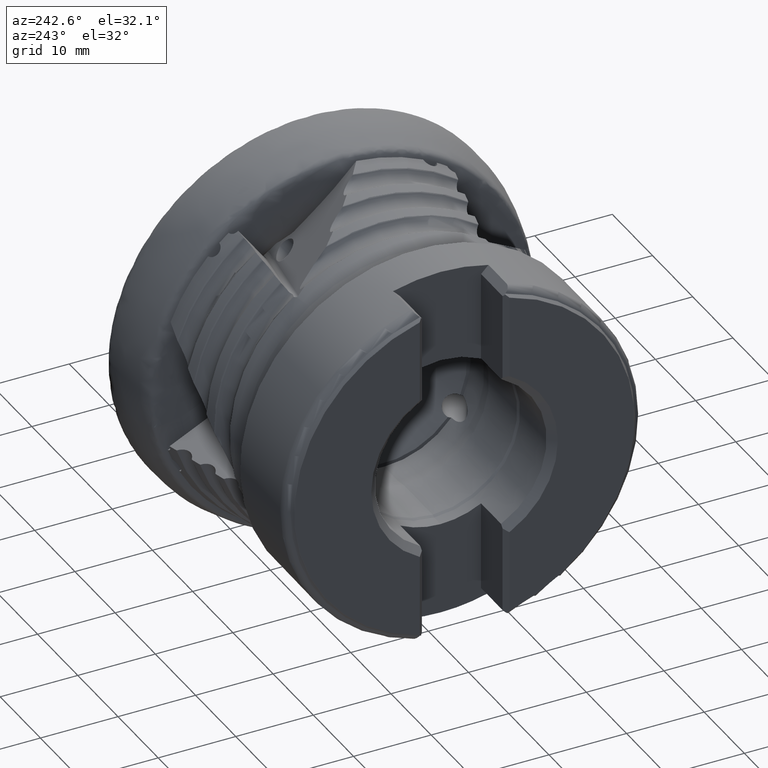
[diagram: clean part render]
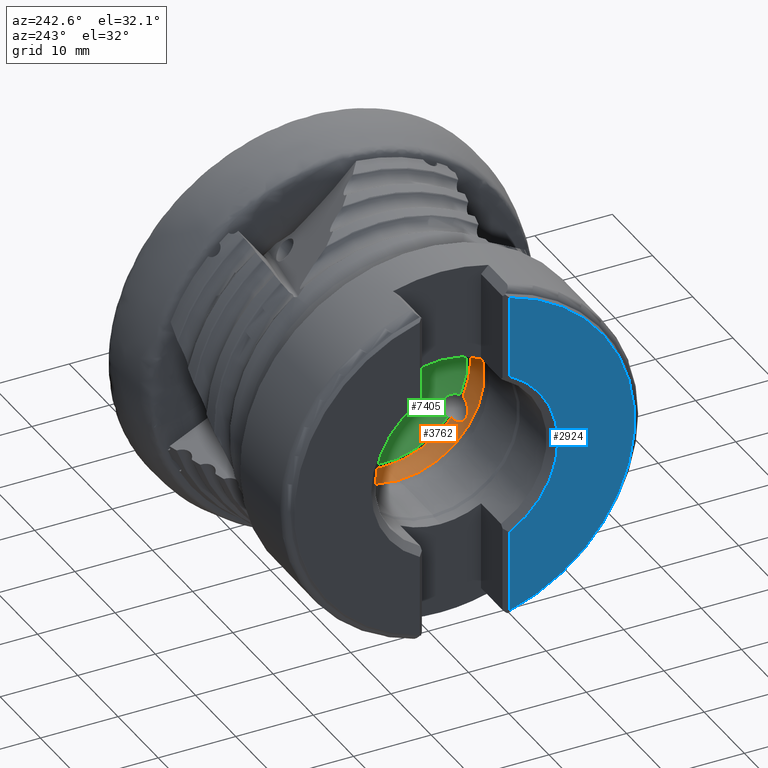
[diagram: same view with three faces highlighted in distinct colors, each labeled with its STEP entity id]
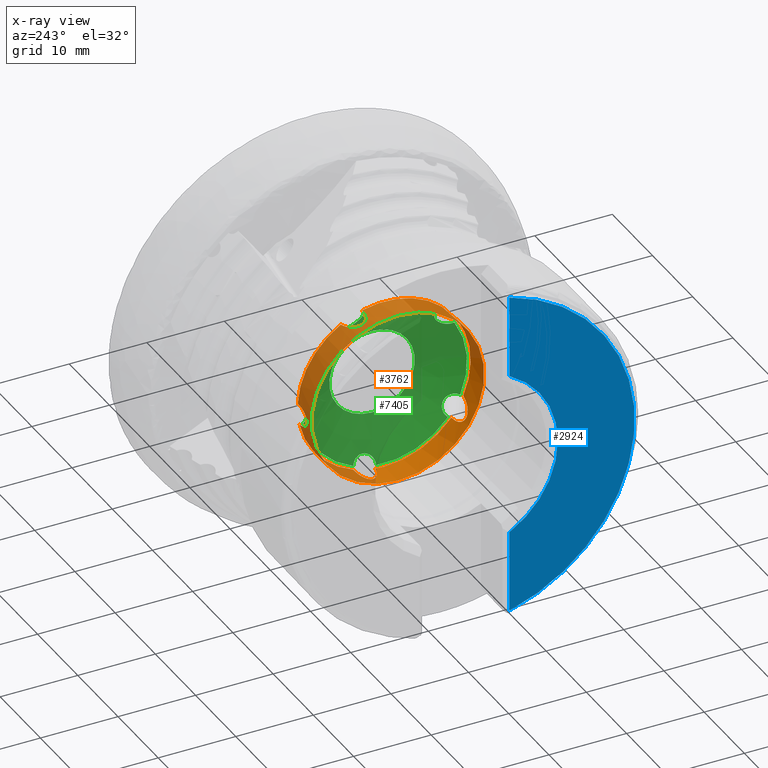
[diagram: x-ray of the same camera — body ghosted, the three highlighted faces saturated]
A machine part, auxiliary view with three faces highlighted in distinct colors.
The next image is the same camera in x-ray (body ghosted, the three faces saturated) — at least one of them is partly hidden behind the body in this view.
Their STEP definitions:

[orange] entity #3762 — the highlighted cylindrical surface (bore or boss wall) has radius 11.15 mm, axis along (1, -0, -0).
#149 = CARTESIAN_POINT ( 'NONE',  ( -20.65374716173695900, 3.200912327050315000, 10.68087169038327600 ) ) ;
#176 = CARTESIAN_POINT ( 'NONE',  ( -20.15352680948125700, 5.259727511920351300, 9.832297671609188300 ) ) ;
#272 = EDGE_LOOP ( 'NONE', ( #6624, #9561, #5532, #2897, #889, #4864, #3091, #8757, #9420, #2860 ) ) ;
#293 = CARTESIAN_POINT ( 'NONE',  ( -20.65601831202417300, -9.168309473252406900, 6.345790389407414800 ) ) ;
#303 = CARTESIAN_POINT ( 'NONE',  ( -19.00000000000000000, 11.13378067538587900, 0.6011887161315945200 ) ) ;
#321 = CARTESIAN_POINT ( 'NONE',  ( -22.39904181246358000, 0.0000000000000000000, -11.14999999999999700 ) ) ;
#323 = CARTESIAN_POINT ( 'NONE',  ( -20.15531217829027000, -7.726393512939347700, 8.040003214790333500 ) ) ;
#660 = CARTESIAN_POINT ( 'NONE',  ( -19.96954961455513500, 11.13842004640219200, 0.5094275870103421900 ) ) ;
#685 = CARTESIAN_POINT ( 'NONE',  ( -20.65731140013641500, -8.868711207813962700, -6.758186262422156300 ) ) ;
#687 = CARTESIAN_POINT ( 'NONE',  ( -21.01087066442919100, 11.07540578241055800, -1.290908182655602800 ) ) ;
#711 = CARTESIAN_POINT ( 'NONE',  ( -20.14930099210685600, -10.03539597498195900, -4.861016928152857900 ) ) ;
#730 = CARTESIAN_POINT ( 'NONE',  ( -20.54770342484380000, 3.739202799541584600, -10.50443055125018300 ) ) ;
#758 = VERTEX_POINT ( 'NONE', #928 ) ;
#832 = VERTEX_POINT ( 'NONE', #6322 ) ;
#889 = ORIENTED_EDGE ( 'NONE', *, *, #7701, .F. ) ;
#928 = CARTESIAN_POINT ( 'NONE',  ( -18.99999999999996100, 10.90062604148086600, -2.344963092201920200 ) ) ;
#933 = CARTESIAN_POINT ( 'NONE',  ( -20.95194922637920600, 3.401993368158433600, 10.61873777387004800 ) ) ;
#966 = CARTESIAN_POINT ( 'NONE',  ( -19.47605082154158800, 5.496993238785782100, 9.701170473682292800 ) ) ;
#1086 = CARTESIAN_POINT ( 'NONE',  ( -20.95601962319156500, -9.045471095745050100, 6.520010687297969700 ) ) ;
#1130 = CARTESIAN_POINT ( 'NONE',  ( -19.47648082896947500, -7.527769890133475500, 8.225714009222516100 ) ) ;
#1188 = ORIENTED_EDGE ( 'NONE', *, *, #2124, .F. ) ;
#1253 = CARTESIAN_POINT ( 'NONE',  ( -19.00000000000000000, 4.012291886338386100, -10.40307713221540600 ) ) ;
#1261 = CIRCLE ( 'NONE', #4631, 11.14999999999999900 ) ;
#1315 = CARTESIAN_POINT ( 'NONE',  ( -19.00000000000000000, 2.868762994338141900, 10.77463219243775700 ) ) ;
#1431 = AXIS2_PLACEMENT_3D ( 'NONE', #7248, #2578, #8036 ) ;
#1455 = CARTESIAN_POINT ( 'NONE',  ( -20.54682292802148800, 11.14577233216032100, 0.3105977922661296600 ) ) ;
#1481 = CARTESIAN_POINT ( 'NONE',  ( -20.95930859977201500, -8.997833516409365000, -6.585611339750207600 ) ) ;
#1483 = CARTESIAN_POINT ( 'NONE',  ( -20.57178317787948200, 11.01830480340752600, -1.713395142816428200 ) ) ;
#1523 = CARTESIAN_POINT ( 'NONE',  ( -19.47390299663417300, -10.14960963253738100, -4.616813744078142700 ) ) ;
#1540 = CARTESIAN_POINT ( 'NONE',  ( -20.86253938389102200, 3.559102130354114800, -10.56692046043277600 ) ) ;
#1568 = DIRECTION ( 'NONE',  ( 1.000000000000000000, -0.0000000000000000000, -0.0000000000000000000 ) ) ;
#1713 = VERTEX_POINT ( 'NONE', #7645 ) ;
#1723 = FACE_OUTER_BOUND ( 'NONE', #272, .T. ) ;
#1733 = CARTESIAN_POINT ( 'NONE',  ( -21.17926471025420200, 3.680037132726535500, 10.52585301580393000 ) ) ;
#1772 = CARTESIAN_POINT ( 'NONE',  ( -18.99999999999978700, 5.598671125456165900, 9.642477981773341300 ) ) ;
#1804 = DIRECTION ( 'NONE',  ( 0.0000000000000000000, 0.0000000000000000000, -1.000000000000000000 ) ) ;
#1893 = CARTESIAN_POINT ( 'NONE',  ( -21.18088844487279200, -8.871217800194772400, 6.755548669824166000 ) ) ;
#1926 = CARTESIAN_POINT ( 'NONE',  ( -18.99999999999967700, -7.440456994118004100, 8.304342220710825700 ) ) ;
#2124 = EDGE_CURVE ( 'NONE', #2350, #2350, #7243, .T. ) ;
#2248 = CARTESIAN_POINT ( 'NONE',  ( -20.86222607264242200, 11.14956018152946600, 0.1198573633100861000 ) ) ;
#2275 = CARTESIAN_POINT ( 'NONE',  ( -21.18337929368388500, -9.168906425526921900, -6.345663061610350700 ) ) ;
#2276 = CARTESIAN_POINT ( 'NONE',  ( -19.93083824550326400, 10.95743799966453100, -2.064982377817486300 ) ) ;
#2311 = CARTESIAN_POINT ( 'NONE',  ( -19.00000000000030900, -10.19712643965033500, -4.510112235164886100 ) ) ;
#2321 = CARTESIAN_POINT ( 'NONE',  ( -21.11801481087871600, 3.306778040405337300, -10.64878028798158900 ) ) ;
#2350 = VERTEX_POINT ( 'NONE', #321 ) ;
#2433 = DIRECTION ( 'NONE',  ( 1.000000000000000000, -0.0000000000000000000, -0.0000000000000000000 ) ) ;
#2528 = CARTESIAN_POINT ( 'NONE',  ( -21.26875383626715900, 4.017536285486519500, 10.40178254187552700 ) ) ;
#2538 = CARTESIAN_POINT ( 'NONE',  ( -19.00000000000000000, 11.13378067538587900, 0.6011887161315945200 ) ) ;
#2578 = DIRECTION ( 'NONE',  ( 1.000000000000000000, -0.0000000000000000000, -0.0000000000000000000 ) ) ;
#2599 = CARTESIAN_POINT ( 'NONE',  ( 0.0000000000000000000, 0.0000000000000000000, 0.0000000000000000000 ) ) ;
#2634 = EDGE_CURVE ( 'NONE', #4858, #2787, #5185, .T. ) ;
#2682 = CARTESIAN_POINT ( 'NONE',  ( -21.26868722918730000, -8.650242673740722300, 7.036392409192499600 ) ) ;
#2787 = VERTEX_POINT ( 'NONE', #8256 ) ;
#2810 = CARTESIAN_POINT ( 'NONE',  ( -19.00000000000000000, 0.0000000000000000000, 0.0000000000000000000 ) ) ;
#2828 = CARTESIAN_POINT ( 'NONE',  ( -19.00000000000000000, 2.868762994338141900, 10.77463219243775700 ) ) ;
#2860 = ORIENTED_EDGE ( 'NONE', *, *, #8400, .T. ) ;
#2897 = ORIENTED_EDGE ( 'NONE', *, *, #5451, .T. ) ;
#3040 = CARTESIAN_POINT ( 'NONE',  ( -21.11675398965924800, 11.14944984796520300, -0.1442449607091185500 ) ) ;
#3066 = CARTESIAN_POINT ( 'NONE',  ( -21.26872501950567000, -9.369017977816266600, -6.046398440450499100 ) ) ;
#3067 = CARTESIAN_POINT ( 'NONE',  ( -19.23842261280913800, 10.91124991664581100, -2.295577713528120800 ) ) ;
#3091 = ORIENTED_EDGE ( 'NONE', *, *, #3730, .F. ) ;
#3118 = CARTESIAN_POINT ( 'NONE',  ( -21.25802507840084800, 2.979242748000749500, -10.74524524810297700 ) ) ;
#3305 = CARTESIAN_POINT ( 'NONE',  ( -21.19771122126793400, 4.355909445980979700, 10.26452494811798000 ) ) ;
#3354 = CARTESIAN_POINT ( 'NONE',  ( -19.94761827103593500, 1.400324054842491100, -11.06460398856844000 ) ) ;
#3468 = CARTESIAN_POINT ( 'NONE',  ( -21.19850334521688500, -8.417276461957039000, 7.313277886105805000 ) ) ;
#3495 = EDGE_CURVE ( 'NONE', #832, #2787, #5063, .T. ) ;
#3566 = B_SPLINE_CURVE_WITH_KNOTS ( 'NONE', 3,
 ( #7304, #8781, #8903, #4220, #9713, #5006, #293, #5783, #1086, #6576, #1893, #7341, #2682, #8141, #3468, #8937, #4256, #9754, #5047, #323, #5818, #1130, #6611, #1926 ),
 .UNSPECIFIED., .F., .F.,
 ( 4, 2, 2, 2, 2, 2, 2, 2, 2, 2, 2, 4 ),
 ( 0.01052057343565222600, 0.01125133881053291600, 0.01198210418541360700, 0.01234748687285395000, 0.01271286956029429500, 0.01307825224773464000, 0.01344363493517498600, 0.01380901762261532900, 0.01417440031005567200, 0.01490516568493635900, 0.01563593105981704600, 0.01636669643469772900 ),
 .UNSPECIFIED. ) ;
#3587 = CYLINDRICAL_SURFACE ( 'NONE', #4479, 11.14999999999999700 ) ;
#3589 = DIRECTION ( 'NONE',  ( 0.0000000000000000000, 0.0000000000000000000, -1.000000000000000000 ) ) ;
#3730 = EDGE_CURVE ( 'NONE', #7287, #9948, #6929, .T. ) ;
#3762 = ADVANCED_FACE ( 'NONE', ( #8699, #1723 ), #3587, .F. ) ;
#3800 = VERTEX_POINT ( 'NONE', #8858 ) ;
#3807 = CARTESIAN_POINT ( 'NONE',  ( -21.25795405248662100, 11.13999741090844600, -0.4864834430915406800 ) ) ;
#3843 = CARTESIAN_POINT ( 'NONE',  ( -21.19486770781679000, -9.560935905655378900, -5.737839137121478700 ) ) ;
#3886 = CARTESIAN_POINT ( 'NONE',  ( -21.23750898957846500, 2.622016949096260600, -10.83800533694860500 ) ) ;
#4058 = CARTESIAN_POINT ( 'NONE',  ( -19.96777354157495700, 2.957035874281786800, 10.75080716665297600 ) ) ;
#4101 = CARTESIAN_POINT ( 'NONE',  ( -21.01312151213245000, 4.647554477421101300, 10.13564659033617400 ) ) ;
#4134 = CARTESIAN_POINT ( 'NONE',  ( -19.00000000000000000, 1.138286266834950900, -11.09174487511928400 ) ) ;
#4220 = CARTESIAN_POINT ( 'NONE',  ( -19.96905122147796200, -9.310713648108865900, 6.134699383807011400 ) ) ;
#4256 = CARTESIAN_POINT ( 'NONE',  ( -21.01418316087916700, -8.204426575274185400, 7.551048655514637900 ) ) ;
#4375 = DIRECTION ( 'NONE',  ( 1.000000000000000000, -0.0000000000000000000, -0.0000000000000000000 ) ) ;
#4479 = AXIS2_PLACEMENT_3D ( 'NONE', #2599, #9627, #1804 ) ;
#4512 = CARTESIAN_POINT ( 'NONE',  ( -19.24430115341607100, -8.654341558137675200, -7.030282527178997000 ) ) ;
#4581 = CARTESIAN_POINT ( 'NONE',  ( -19.24208435060813100, 11.13380555674169900, 0.6007279231206728000 ) ) ;
#4605 = CARTESIAN_POINT ( 'NONE',  ( -19.00000000000000000, 0.0000000000000000000, 0.0000000000000000000 ) ) ;
#4607 = CARTESIAN_POINT ( 'NONE',  ( -19.97360312289204400, -8.712246955681235900, -6.958498267894722000 ) ) ;
#4608 = CARTESIAN_POINT ( 'NONE',  ( -21.23723330486220800, 11.11768826013685700, -0.8571134412584882100 ) ) ;
#4631 = AXIS2_PLACEMENT_3D ( 'NONE', #2810, #8273, #3589 ) ;
#4634 = CARTESIAN_POINT ( 'NONE',  ( -21.00789998855212600, -9.720850355307135300, -5.462241088460222800 ) ) ;
#4645 = CARTESIAN_POINT ( 'NONE',  ( -19.48788428368115400, 3.996808221321415100, -10.40910314109401300 ) ) ;
#4670 = VERTEX_POINT ( 'NONE', #8885 ) ;
#4679 = CARTESIAN_POINT ( 'NONE',  ( -21.08373670443261000, 2.294332859821482300, -10.91193477719643700 ) ) ;
#4851 = CARTESIAN_POINT ( 'NONE',  ( -20.54557345847868200, 3.148299888144742800, 10.69639633170365300 ) ) ;
#4858 = VERTEX_POINT ( 'NONE', #1253 ) ;
#4864 = ORIENTED_EDGE ( 'NONE', *, *, #9937, .T. ) ;
#4882 = CARTESIAN_POINT ( 'NONE',  ( -20.57373422940532500, 5.033134525636897100, 9.950194362404440400 ) ) ;
#5006 = CARTESIAN_POINT ( 'NONE',  ( -20.54762361979544100, -9.199442329273791700, 6.300393054345025100 ) ) ;
#5047 = CARTESIAN_POINT ( 'NONE',  ( -20.57496153855524000, -7.908511824370141800, 7.860931823545334000 ) ) ;
#5063 = CIRCLE ( 'NONE', #6812, 11.14999999999999900 ) ;
#5185 = B_SPLINE_CURVE_WITH_KNOTS ( 'NONE', 3,
 ( #6114, #6952, #4645, #10142, #5441, #730, #6215, #1540, #6997, #2321, #7765, #3118, #8558, #3886, #9378, #4679, #10171, #5834, #8021, #3354, #8811, #4134 ),
 .UNSPECIFIED., .F., .F.,
 ( 4, 2, 2, 2, 2, 2, 2, 2, 2, 2, 4 ),
 ( 2.485986451211340100E-016, 0.0007285432793764157800, 0.001457086558752582800, 0.001821358198440661000, 0.002185629838128739700, 0.002549901477816817600, 0.002914173117504896400, 0.003278444757192974700, 0.003642716396881052600, 0.004371259676257211400, 0.005828346235009526500 ),
 .UNSPECIFIED. ) ;
#5345 = CARTESIAN_POINT ( 'NONE',  ( -19.00000000000000000, -8.654047916844616500, -7.030643971426608900 ) ) ;
#5367 = CARTESIAN_POINT ( 'NONE',  ( -19.48799863207969100, 11.13472563587720100, 0.5846388716467677500 ) ) ;
#5387 = EDGE_LOOP ( 'NONE', ( #1188 ) ) ;
#5389 = DIRECTION ( 'NONE',  ( 0.0000000000000000000, 0.0000000000000000000, -1.000000000000000000 ) ) ;
#5391 = CARTESIAN_POINT ( 'NONE',  ( -20.54786587126403700, -8.834919617648735000, -6.802121451522893400 ) ) ;
#5392 = CARTESIAN_POINT ( 'NONE',  ( -21.08265594676982600, 11.08667173995730500, -1.191662826724664700 ) ) ;
#5418 = CARTESIAN_POINT ( 'NONE',  ( -20.56907398538708900, -9.921967545593611600, -5.088537901466366100 ) ) ;
#5441 = CARTESIAN_POINT ( 'NONE',  ( -20.20809400731950900, 3.871530782687656800, -10.45669854816775800 ) ) ;
#5451 = EDGE_CURVE ( 'NONE', #4858, #758, #7834, .T. ) ;
#5532 = ORIENTED_EDGE ( 'NONE', *, *, #2634, .F. ) ;
#5557 = AXIS2_PLACEMENT_3D ( 'NONE', #4605, #10096, #5389 ) ;
#5560 = AXIS2_PLACEMENT_3D ( 'NONE', #6243, #1568, #7024 ) ;
#5583 = B_SPLINE_CURVE_WITH_KNOTS ( 'NONE', 3,
 ( #5345, #4512, #9292, #4607, #10097, #5391, #685, #6173, #1481, #6940, #2275, #7717, #3066, #8510, #3843, #9319, #4634, #10126, #5418, #711, #6198, #1523, #6970, #2311 ),
 .UNSPECIFIED., .F., .F.,
 ( 4, 2, 2, 2, 2, 2, 2, 2, 2, 2, 2, 4 ),
 ( 0.01114576918878733500, 0.01187530446468684100, 0.01260483974058634700, 0.01296960737853609400, 0.01333437501648584300, 0.01369914265443559200, 0.01406391029238534100, 0.01442867793033508900, 0.01479344556828483600, 0.01552298084418432900, 0.01625251612008382300, 0.01698205139598331400 ),
 .UNSPECIFIED. ) ;
#5630 = CARTESIAN_POINT ( 'NONE',  ( -20.85619783772384000, 3.327184614769313200, 10.64221322522415400 ) ) ;
#5672 = CARTESIAN_POINT ( 'NONE',  ( -19.93262668895395300, 5.349299231885015400, 9.783385965730685600 ) ) ;
#5783 = CARTESIAN_POINT ( 'NONE',  ( -20.85970646559701100, -9.091687578087121600, 6.455088786847298400 ) ) ;
#5818 = CARTESIAN_POINT ( 'NONE',  ( -19.93422630546101000, -7.652006444214086900, 8.110270516944908100 ) ) ;
#5834 = CARTESIAN_POINT ( 'NONE',  ( -20.76873091937230600, 1.925043382814207500, -10.98409220425294900 ) ) ;
#5847 = VERTEX_POINT ( 'NONE', #2538 ) ;
#6114 = CARTESIAN_POINT ( 'NONE',  ( -19.00000000000000000, 4.012291886338386100, -10.40307713221540600 ) ) ;
#6135 = CARTESIAN_POINT ( 'NONE',  ( -20.20556596191023500, 11.14124722803579300, 0.4516167394769432500 ) ) ;
#6173 = CARTESIAN_POINT ( 'NONE',  ( -20.86385182821786800, -8.950445446673992200, -6.649559861472741100 ) ) ;
#6174 = CARTESIAN_POINT ( 'NONE',  ( -20.76595090956561100, 11.04099144171022900, -1.566281171589323000 ) ) ;
#6198 = CARTESIAN_POINT ( 'NONE',  ( -19.92837974858402500, -10.07895564061281800, -4.769087757104447400 ) ) ;
#6215 = CARTESIAN_POINT ( 'NONE',  ( -20.65828195098264800, 3.686212749901061100, -10.52325289793373600 ) ) ;
#6227 = EDGE_CURVE ( 'NONE', #7287, #4670, #1261, .T. ) ;
#6243 = CARTESIAN_POINT ( 'NONE',  ( -22.39904181246358000, 0.0000000000000000000, 0.0000000000000000000 ) ) ;
#6322 = CARTESIAN_POINT ( 'NONE',  ( -19.00000000000000000, -8.654047916844616500, -7.030643971426608900 ) ) ;
#6414 = CARTESIAN_POINT ( 'NONE',  ( -21.11411590217221600, 3.578663619161131800, 10.56050744463073900 ) ) ;
#6418 = EDGE_CURVE ( 'NONE', #832, #1713, #5583, .T. ) ;
#6449 = CARTESIAN_POINT ( 'NONE',  ( -19.23850637135038300, 5.554970450448705900, 9.667851719498164800 ) ) ;
#6576 = CARTESIAN_POINT ( 'NONE',  ( -21.11619489742082200, -8.935857247362450900, 6.669448400070194800 ) ) ;
#6611 = CARTESIAN_POINT ( 'NONE',  ( -19.23836905907023700, -7.478071436199536800, 8.270640738856259900 ) ) ;
#6624 = ORIENTED_EDGE ( 'NONE', *, *, #6418, .F. ) ;
#6812 = AXIS2_PLACEMENT_3D ( 'NONE', #7086, #2433, #7872 ) ;
#6911 = CARTESIAN_POINT ( 'NONE',  ( -18.99999999999978700, 5.598671125456165900, 9.642477981773341300 ) ) ;
#6914 = CARTESIAN_POINT ( 'NONE',  ( -20.65670897726239000, 11.14729124216958500, 0.2548646529754225500 ) ) ;
#6929 = B_SPLINE_CURVE_WITH_KNOTS ( 'NONE', 3,
 ( #2828, #7475, #8740, #4058, #9547, #4851, #149, #5630, #933, #6414, #1733, #7191, #2528, #7985, #3305, #8773, #4101, #9588, #4882, #176, #5672, #966, #6449, #1772 ),
 .UNSPECIFIED., .F., .F.,
 ( 4, 2, 2, 2, 2, 2, 2, 2, 2, 2, 2, 4 ),
 ( 0.01258909624184032800, 0.01332554681435847200, 0.01406199738687661400, 0.01443022267313568600, 0.01479844795939475700, 0.01516667324565382900, 0.01553489853191290100, 0.01590312381817197300, 0.01627134910443104500, 0.01700779967694918800, 0.01774425024946733500, 0.01848070082198547900 ),
 .UNSPECIFIED. ) ;
#6940 = CARTESIAN_POINT ( 'NONE',  ( -21.11975147568423600, -9.107271341476831600, -6.433420040692277900 ) ) ;
#6941 = CARTESIAN_POINT ( 'NONE',  ( -20.15149264224608700, 10.97623332034216600, -1.964959478877542200 ) ) ;
#6952 = CARTESIAN_POINT ( 'NONE',  ( -19.24500470533572700, 4.011856140998466100, -10.40324519186445700 ) ) ;
#6970 = CARTESIAN_POINT ( 'NONE',  ( -19.23852147001689200, -10.17668486576137200, -4.556329558083366000 ) ) ;
#6997 = CARTESIAN_POINT ( 'NONE',  ( -20.95632523165407300, 3.485506694760685400, -10.59162620710297800 ) ) ;
#7024 = DIRECTION ( 'NONE',  ( 0.0000000000000000000, 0.0000000000000000000, -1.000000000000000000 ) ) ;
#7086 = CARTESIAN_POINT ( 'NONE',  ( -19.00000000000000000, 0.0000000000000000000, 0.0000000000000000000 ) ) ;
#7159 = B_SPLINE_CURVE_WITH_KNOTS ( 'NONE', 3,
 ( #303, #4581, #5367, #660, #6135, #1455, #6914, #2248, #7682, #3040, #8491, #3807, #9293, #4608, #10100, #5392, #687, #6174, #1483, #6941, #2276, #7719, #3067, #8512 ),
 .UNSPECIFIED., .F., .F.,
 ( 4, 2, 2, 2, 2, 2, 2, 2, 2, 2, 2, 4 ),
 ( 0.004746644626564121300, 0.005481220680190215100, 0.006215796733816309800, 0.006583084760629357600, 0.006950372787442404500, 0.007317660814255451400, 0.007684948841068498300, 0.008052236867881545200, 0.008419524894694593900, 0.009154100948320687700, 0.009888677001946781500, 0.01062325305557287700 ),
 .UNSPECIFIED. ) ;
#7191 = CARTESIAN_POINT ( 'NONE',  ( -21.25719841346601800, 3.900631673604371600, 10.44611542897306900 ) ) ;
#7243 = CIRCLE ( 'NONE', #5560, 11.14999999999999700 ) ;
#7248 = CARTESIAN_POINT ( 'NONE',  ( -19.00000000000000000, 0.0000000000000000000, 0.0000000000000000000 ) ) ;
#7287 = VERTEX_POINT ( 'NONE', #1315 ) ;
#7304 = CARTESIAN_POINT ( 'NONE',  ( -19.00000000000000000, -9.360787639218337100, 6.057900195072309500 ) ) ;
#7341 = CARTESIAN_POINT ( 'NONE',  ( -21.25715522384492900, -8.728818264234846000, 6.938564318273325400 ) ) ;
#7475 = CARTESIAN_POINT ( 'NONE',  ( -19.24228495291612600, 2.869209292812400200, 10.77451336475765100 ) ) ;
#7645 = CARTESIAN_POINT ( 'NONE',  ( -19.00000000000030900, -10.19712643965033500, -4.510112235164886100 ) ) ;
#7682 = CARTESIAN_POINT ( 'NONE',  ( -20.95748588903550700, 11.15030911247616400, 0.04056127725240914900 ) ) ;
#7701 = EDGE_CURVE ( 'NONE', #5847, #758, #7159, .T. ) ;
#7717 = CARTESIAN_POINT ( 'NONE',  ( -21.25861231638028700, -9.300496967921450400, -6.151182071865444600 ) ) ;
#7719 = CARTESIAN_POINT ( 'NONE',  ( -19.47522053618440600, 10.92497843426918400, -2.230346598164155000 ) ) ;
#7765 = CARTESIAN_POINT ( 'NONE',  ( -21.18215048414316800, 3.204016692799240800, -10.68037732599641900 ) ) ;
#7834 = CIRCLE ( 'NONE', #9702, 11.14999999999999900 ) ;
#7872 = DIRECTION ( 'NONE',  ( 0.0000000000000000000, 0.0000000000000000000, -1.000000000000000000 ) ) ;
#7969 = EDGE_CURVE ( 'NONE', #3800, #4670, #3566, .T. ) ;
#7985 = CARTESIAN_POINT ( 'NONE',  ( -21.23850255158659200, 4.246389863305849700, 10.31047287870350900 ) ) ;
#8021 = CARTESIAN_POINT ( 'NONE',  ( -20.57135029781478900, 1.775233415473773400, -11.00849733347785700 ) ) ;
#8036 = DIRECTION ( 'NONE',  ( 0.0000000000000000000, 0.0000000000000000000, -1.000000000000000000 ) ) ;
#8141 = CARTESIAN_POINT ( 'NONE',  ( -21.23836078327790500, -8.493508090174426400, 7.224807040529764600 ) ) ;
#8256 = CARTESIAN_POINT ( 'NONE',  ( -19.00000000000000000, 1.138286266834950900, -11.09174487511928400 ) ) ;
#8273 = DIRECTION ( 'NONE',  ( 1.000000000000000000, -0.0000000000000000000, -0.0000000000000000000 ) ) ;
#8400 = EDGE_CURVE ( 'NONE', #3800, #1713, #8988, .T. ) ;
#8491 = CARTESIAN_POINT ( 'NONE',  ( -21.18179156202737800, 11.14775670572389600, -0.2524458069308488400 ) ) ;
#8510 = CARTESIAN_POINT ( 'NONE',  ( -21.23655553790060700, -9.499280619923526500, -5.839614685342852800 ) ) ;
#8512 = CARTESIAN_POINT ( 'NONE',  ( -18.99999999999996100, 10.90062604148086600, -2.344963092201920200 ) ) ;
#8558 = CARTESIAN_POINT ( 'NONE',  ( -21.26864100844531100, 2.858125466880371500, -10.77814693630794300 ) ) ;
#8699 = FACE_OUTER_BOUND ( 'NONE', #5387, .T. ) ;
#8740 = CARTESIAN_POINT ( 'NONE',  ( -19.48433730825255200, 2.884406898071841100, 10.77052054186342500 ) ) ;
#8757 = ORIENTED_EDGE ( 'NONE', *, *, #6227, .T. ) ;
#8773 = CARTESIAN_POINT ( 'NONE',  ( -21.08497586276546400, 4.556067576589057000, 10.17726229148471100 ) ) ;
#8781 = CARTESIAN_POINT ( 'NONE',  ( -19.24238802947338200, -9.360536606811832500, 6.058288095330182100 ) ) ;
#8811 = CARTESIAN_POINT ( 'NONE',  ( -19.47959335581956700, 1.239367966011664500, -11.08137140265877100 ) ) ;
#8858 = CARTESIAN_POINT ( 'NONE',  ( -19.00000000000000000, -9.360787639218337100, 6.057900195072309500 ) ) ;
#8885 = CARTESIAN_POINT ( 'NONE',  ( -18.99999999999967700, -7.440456994118004100, 8.304342220710825700 ) ) ;
#8903 = CARTESIAN_POINT ( 'NONE',  ( -19.48469100130406400, -9.352041120434698500, 6.071511512668100100 ) ) ;
#8937 = CARTESIAN_POINT ( 'NONE',  ( -21.08529678357108100, -8.271497815934859300, 7.477760383791728100 ) ) ;
#8988 = CIRCLE ( 'NONE', #1431, 11.14999999999999900 ) ;
#9061 = CARTESIAN_POINT ( 'NONE',  ( -19.00000000000000000, 0.0000000000000000000, 0.0000000000000000000 ) ) ;
#9292 = CARTESIAN_POINT ( 'NONE',  ( -19.48970119508709300, -8.664595774824741500, -7.017743598904144300 ) ) ;
#9293 = CARTESIAN_POINT ( 'NONE',  ( -21.26880460212699100, 11.13389372373495300, -0.6115932057718862500 ) ) ;
#9319 = CARTESIAN_POINT ( 'NONE',  ( -21.08115177683699700, -9.670880769331649400, -5.550527767780693000 ) ) ;
#9378 = CARTESIAN_POINT ( 'NONE',  ( -21.19642802253661900, 2.506349266711833700, -10.86519660230309700 ) ) ;
#9420 = ORIENTED_EDGE ( 'NONE', *, *, #7969, .F. ) ;
#9547 = CARTESIAN_POINT ( 'NONE',  ( -20.20595301125510400, 3.013557674662560100, 10.73544208795254900 ) ) ;
#9561 = ORIENTED_EDGE ( 'NONE', *, *, #3495, .T. ) ;
#9588 = CARTESIAN_POINT ( 'NONE',  ( -20.76865461479754100, 4.899390199249878300, 10.01762713294198400 ) ) ;
#9627 = DIRECTION ( 'NONE',  ( 1.000000000000000000, -0.0000000000000000000, -0.0000000000000000000 ) ) ;
#9702 = AXIS2_PLACEMENT_3D ( 'NONE', #9061, #4375, #9871 ) ;
#9713 = CARTESIAN_POINT ( 'NONE',  ( -20.20860520316243500, -9.278316885296064200, 6.184181676788274000 ) ) ;
#9754 = CARTESIAN_POINT ( 'NONE',  ( -20.77258374690905600, -8.015993455299844000, 7.752428898909632200 ) ) ;
#9851 = CIRCLE ( 'NONE', #5557, 11.14999999999999900 ) ;
#9871 = DIRECTION ( 'NONE',  ( 0.0000000000000000000, 0.0000000000000000000, -1.000000000000000000 ) ) ;
#9937 = EDGE_CURVE ( 'NONE', #5847, #9948, #9851, .T. ) ;
#9948 = VERTEX_POINT ( 'NONE', #6911 ) ;
#10096 = DIRECTION ( 'NONE',  ( 1.000000000000000000, -0.0000000000000000000, -0.0000000000000000000 ) ) ;
#10097 = CARTESIAN_POINT ( 'NONE',  ( -20.21178532662419200, -8.749384377835930600, -6.912265661504229700 ) ) ;
#10100 = CARTESIAN_POINT ( 'NONE',  ( -21.19601934812296000, 11.10782515010381200, -0.9749723057023773600 ) ) ;
#10126 = CARTESIAN_POINT ( 'NONE',  ( -20.76237396707980300, -9.854415650212622800, -5.219868728981287700 ) ) ;
#10142 = CARTESIAN_POINT ( 'NONE',  ( -19.96786305502104500, 3.926754390240702700, -10.43573208350430400 ) ) ;
#10171 = CARTESIAN_POINT ( 'NONE',  ( -21.01090951714046500, 2.194947499537979400, -10.93220466642404400 ) ) ;

[blue] entity #2924 — the highlighted planar face has unit normal (-1, 0, 0).
#12 = CIRCLE ( 'NONE', #505, 12.02500000000000700 ) ;
#505 = AXIS2_PLACEMENT_3D ( 'NONE', #4566, #10057, #5359 ) ;
#743 = EDGE_LOOP ( 'NONE', ( #10043, #5268, #8797, #7285 ) ) ;
#762 = VERTEX_POINT ( 'NONE', #9071 ) ;
#833 = DIRECTION ( 'NONE',  ( 0.0000000000000000000, 0.0000000000000000000, -1.000000000000000000 ) ) ;
#856 = VERTEX_POINT ( 'NONE', #6966 ) ;
#946 = AXIS2_PLACEMENT_3D ( 'NONE', #3823, #4618, #10117 ) ;
#1003 = CIRCLE ( 'NONE', #9804, 21.92228756555322300 ) ;
#1626 = LINE ( 'NONE', #5542, #6051 ) ;
#1752 = LINE ( 'NONE', #9772, #9877 ) ;
#1948 = DIRECTION ( 'NONE',  ( 0.0000000000000000000, 0.0000000000000000000, -1.000000000000000000 ) ) ;
#1974 = EDGE_CURVE ( 'NONE', #9101, #2393, #1752, .T. ) ;
#2261 = PLANE ( 'NONE',  #946 ) ;
#2393 = VERTEX_POINT ( 'NONE', #6651 ) ;
#2924 = ADVANCED_FACE ( 'NONE', ( #4584 ), #2261, .T. ) ;
#3712 = CARTESIAN_POINT ( 'NONE',  ( -39.00000000000000000, 0.0000000000000000000, 0.0000000000000000000 ) ) ;
#3823 = CARTESIAN_POINT ( 'NONE',  ( -39.00000000000000000, 0.0000000000000000000, 0.0000000000000000000 ) ) ;
#4353 = EDGE_CURVE ( 'NONE', #856, #2393, #1003, .T. ) ;
#4507 = DIRECTION ( 'NONE',  ( 0.0000000000000000000, 0.0000000000000000000, 1.000000000000000000 ) ) ;
#4552 = EDGE_CURVE ( 'NONE', #856, #762, #1626, .T. ) ;
#4566 = CARTESIAN_POINT ( 'NONE',  ( -39.00000000000000000, 0.0000000000000000000, 0.0000000000000000000 ) ) ;
#4584 = FACE_OUTER_BOUND ( 'NONE', #743, .T. ) ;
#4618 = DIRECTION ( 'NONE',  ( -1.000000000000000000, 0.0000000000000000000, 0.0000000000000000000 ) ) ;
#5268 = ORIENTED_EDGE ( 'NONE', *, *, #4353, .F. ) ;
#5359 = DIRECTION ( 'NONE',  ( 0.0000000000000000000, 0.0000000000000000000, 1.000000000000000000 ) ) ;
#5542 = CARTESIAN_POINT ( 'NONE',  ( -39.00000000000000000, -5.780000000000018000, -35.00000000000000000 ) ) ;
#6051 = VECTOR ( 'NONE', #833, 1000.000000000000000 ) ;
#6651 = CARTESIAN_POINT ( 'NONE',  ( -39.00000000000000000, -5.780000000000018000, -21.14659055514172800 ) ) ;
#6966 = CARTESIAN_POINT ( 'NONE',  ( -39.00000000000000000, -5.780000000000020700, 21.14659055514172400 ) ) ;
#7285 = ORIENTED_EDGE ( 'NONE', *, *, #9305, .T. ) ;
#7387 = CARTESIAN_POINT ( 'NONE',  ( -39.00000000000000000, -5.780000000000018000, -10.54477240152673700 ) ) ;
#8797 = ORIENTED_EDGE ( 'NONE', *, *, #4552, .T. ) ;
#9071 = CARTESIAN_POINT ( 'NONE',  ( -39.00000000000000000, -5.780000000000018000, 10.54477240152673700 ) ) ;
#9101 = VERTEX_POINT ( 'NONE', #7387 ) ;
#9190 = DIRECTION ( 'NONE',  ( 1.000000000000000000, -0.0000000000000000000, -0.0000000000000000000 ) ) ;
#9305 = EDGE_CURVE ( 'NONE', #762, #9101, #12, .T. ) ;
#9772 = CARTESIAN_POINT ( 'NONE',  ( -39.00000000000000000, -5.780000000000018000, -35.00000000000000000 ) ) ;
#9804 = AXIS2_PLACEMENT_3D ( 'NONE', #3712, #9190, #4507 ) ;
#9877 = VECTOR ( 'NONE', #1948, 1000.000000000000000 ) ;
#10043 = ORIENTED_EDGE ( 'NONE', *, *, #1974, .T. ) ;
#10057 = DIRECTION ( 'NONE',  ( 1.000000000000000000, -0.0000000000000000000, -0.0000000000000000000 ) ) ;
#10117 = DIRECTION ( 'NONE',  ( 0.0000000000000000000, 0.0000000000000000000, 1.000000000000000000 ) ) ;

[green] entity #7405 — the highlighted conical surface has half-angle 60 deg.
#82 = DIRECTION ( 'NONE',  ( 1.000000000000000000, -0.0000000000000000000, -0.0000000000000000000 ) ) ;
#186 = CARTESIAN_POINT ( 'NONE',  ( -18.55007318161266400, 4.830058084271724000, 8.661224190117501100 ) ) ;
#217 = CARTESIAN_POINT ( 'NONE',  ( -18.55079402507807300, 2.675560970800540300, 9.550521648733486300 ) ) ;
#247 = CARTESIAN_POINT ( 'NONE',  ( -18.80993050056703500, -6.881146923680159200, 7.754158482011138900 ) ) ;
#284 = CARTESIAN_POINT ( 'NONE',  ( -18.34906403808644300, -7.739888757032365300, 5.628820658216263900 ) ) ;
#339 = ORIENTED_EDGE ( 'NONE', *, *, #5771, .F. ) ;
#372 = CARTESIAN_POINT ( 'NONE',  ( -19.00000000000000000, 5.426290633696553700, 9.217540160391283900 ) ) ;
#401 = CARTESIAN_POINT ( 'NONE',  ( -18.44038065012108500, 9.576821729585470100, -1.703031217992206000 ) ) ;
#430 = CARTESIAN_POINT ( 'NONE',  ( -18.32806431484195300, -8.437579235064502500, -4.436201802509017100 ) ) ;
#435 = CARTESIAN_POINT ( 'NONE',  ( -18.67509996213370000, 10.11841672795232000, 0.5518836366062336300 ) ) ;
#465 = CARTESIAN_POINT ( 'NONE',  ( -18.90503490641261000, -8.099472174852875700, -6.731622647308588700 ) ) ;
#488 = AXIS2_PLACEMENT_3D ( 'NONE', #897, #6375, #1690 ) ;
#591 = CARTESIAN_POINT ( 'NONE',  ( -19.00000000000000000, 1.027972829615373000, -10.64664024522983400 ) ) ;
#621 = CARTESIAN_POINT ( 'NONE',  ( -18.44038065012107800, 1.339721729215601600, -9.634364299629940100 ) ) ;
#622 = CARTESIAN_POINT ( 'NONE',  ( -19.00000000000000000, -7.089585611524461800, 8.009085622381693500 ) ) ;
#658 = CARTESIAN_POINT ( 'NONE',  ( -18.67509996213369700, 3.651635253936008000, -9.452644741080169100 ) ) ;
#668 = CARTESIAN_POINT ( 'NONE',  ( -16.00000000000000000, 0.0000000000000000000, 0.0000000000000000000 ) ) ;
#724 = FACE_BOUND ( 'NONE', #1273, .T. ) ;
#897 = CARTESIAN_POINT ( 'NONE',  ( -16.00000000000000000, 0.0000000000000000000, 0.0000000000000000000 ) ) ;
#977 = CARTESIAN_POINT ( 'NONE',  ( -18.44038065012107100, 4.579079603866703400, 8.581833123008634000 ) ) ;
#1019 = CARTESIAN_POINT ( 'NONE',  ( -18.67509996213369000, 2.601890196273964700, 9.793727586337693600 ) ) ;
#1038 = CARTESIAN_POINT ( 'NONE',  ( -18.63185987484258600, -6.771106398178264200, 7.438284009754795500 ) ) ;
#1075 = CARTESIAN_POINT ( 'NONE',  ( -18.51188566635934100, -8.168716774547569100, 5.505690001122499000 ) ) ;
#1160 = CARTESIAN_POINT ( 'NONE',  ( -18.90459173007831600, 10.27933654766345100, -2.288065159131138500 ) ) ;
#1184 = CARTESIAN_POINT ( 'NONE',  ( -18.90459173007830500, -9.661048914780705500, -4.190958828093369200 ) ) ;
#1194 = CARTESIAN_POINT ( 'NONE',  ( -18.35236315996554900, 9.462928616737313400, -1.458826700038205800 ) ) ;
#1226 = CARTESIAN_POINT ( 'NONE',  ( -18.24963655415148600, -8.102028845137466500, -4.763043908066483900 ) ) ;
#1235 = CARTESIAN_POINT ( 'NONE',  ( -18.81148022299132100, 10.34926884414655600, 0.6495775275125804700 ) ) ;
#1271 = CARTESIAN_POINT ( 'NONE',  ( -19.00000000000000000, -8.227192280051022900, -6.835274964245741100 ) ) ;
#1273 = EDGE_LOOP ( 'NONE', ( #8677 ) ) ;
#1329 = B_SPLINE_CURVE_WITH_KNOTS ( 'NONE', 3,
 ( #591, #1397, #3748, #9233, #4543, #10038, #5344, #621, #6101, #1425, #6885, #2207, #7653, #3012, #8453, #3774, #9265, #4577, #10064, #5365, #658, #6133, #1453, #6912, #2244, #7680 ),
 .UNSPECIFIED., .F., .F.,
 ( 4, 2, 2, 2, 2, 2, 2, 2, 2, 2, 2, 2, 4 ),
 ( 3.950812278869879300E-007, 0.0005658135676485478200, 0.0008485228108588779700, 0.001131232054069208600, 0.001413941297279539000, 0.001696650540489869100, 0.002262069026910527900, 0.002827487513331187100, 0.003392905999751846700, 0.003675615242962176100, 0.003958324486172504200, 0.004241033729382833600, 0.004523742972593162100 ),
 .UNSPECIFIED. ) ;
#1344 = EDGE_CURVE ( 'NONE', #8567, #8567, #4958, .T. ) ;
#1397 = CARTESIAN_POINT ( 'NONE',  ( -18.90459173007830900, 1.000410404827900100, -10.48328102525498400 ) ) ;
#1425 = CARTESIAN_POINT ( 'NONE',  ( -18.35236315996554500, 1.536779119912126600, -9.450582166343634700 ) ) ;
#1453 = CARTESIAN_POINT ( 'NONE',  ( -18.81148022299131400, 3.815884892576157500, -9.642009077950550700 ) ) ;
#1494 = CIRCLE ( 'NONE', #6213, 10.69615242270656500 ) ;
#1578 = VERTEX_POINT ( 'NONE', #2727 ) ;
#1589 = VERTEX_POINT ( 'NONE', #372 ) ;
#1690 = DIRECTION ( 'NONE',  ( 0.0000000000000000000, 0.0000000000000000000, -1.000000000000000000 ) ) ;
#1745 = CARTESIAN_POINT ( 'NONE',  ( -19.00000000000000000, 5.426290633696553700, 9.217540160391283900 ) ) ;
#1777 = CARTESIAN_POINT ( 'NONE',  ( -18.35236315996554500, 4.311632398345492100, 8.548977682024183600 ) ) ;
#1814 = CARTESIAN_POINT ( 'NONE',  ( -18.81148022299130300, 2.580315011816690000, 10.04347006828142200 ) ) ;
#1835 = CARTESIAN_POINT ( 'NONE',  ( -18.51097388532003800, -6.739800963194610100, 7.182234396233981000 ) ) ;
#1881 = CARTESIAN_POINT ( 'NONE',  ( -18.63228414959285900, -8.426769993893630700, 5.493663822496353400 ) ) ;
#1990 = CARTESIAN_POINT ( 'NONE',  ( -18.26996096075406600, 9.368750073265584200, -1.101291571684564200 ) ) ;
#2026 = CARTESIAN_POINT ( 'NONE',  ( -18.27118563528522400, -7.831319256115729200, -5.262765701793116000 ) ) ;
#2032 = CARTESIAN_POINT ( 'NONE',  ( -18.95227986400080400, 10.59076999529821000, 0.6942458373375800500 ) ) ;
#2080 = CARTESIAN_POINT ( 'NONE',  ( -19.00000000000000000, 2.638264551201817900, 10.36567589728914000 ) ) ;
#2128 = CIRCLE ( 'NONE', #8544, 10.69615242270656500 ) ;
#2207 = CARTESIAN_POINT ( 'NONE',  ( -18.26996096075406600, 1.847712463099037600, -9.250528618132364000 ) ) ;
#2244 = CARTESIAN_POINT ( 'NONE',  ( -18.95227986400080100, 3.932994939574086400, -9.857887054600173100 ) ) ;
#2270 = AXIS2_PLACEMENT_3D ( 'NONE', #668, #6147, #5377 ) ;
#2286 = B_SPLINE_CURVE_WITH_KNOTS ( 'NONE', 3,
 ( #5697, #8049, #247, #5732, #1038, #6527, #1835, #7289, #2633, #8091, #3409, #8883, #4206, #9696, #4995, #284, #5770, #1075, #6560, #1881, #7325, #2671, #8132, #3450, #8926, #4241 ),
 .UNSPECIFIED., .F., .F.,
 ( 4, 2, 2, 2, 2, 2, 2, 2, 2, 2, 2, 2, 4 ),
 ( 3.950812278831404500E-007, 0.0005658135676485447900, 0.0008485228108588745000, 0.001131232054069204200, 0.001413941297279534000, 0.001696650540489863900, 0.002262069026910522200, 0.002827487513331180600, 0.003392905999751838900, 0.003675615242962172200, 0.003958324486172505900, 0.004241033729382838800, 0.004523742972593171700 ),
 .UNSPECIFIED. ) ;
#2366 = ORIENTED_EDGE ( 'NONE', *, *, #10055, .F. ) ;
#2369 = DIRECTION ( 'NONE',  ( 1.000000000000000000, -0.0000000000000000000, -0.0000000000000000000 ) ) ;
#2569 = CARTESIAN_POINT ( 'NONE',  ( -18.26996096075406200, 3.942493514282102000, 8.569892995307517600 ) ) ;
#2612 = CARTESIAN_POINT ( 'NONE',  ( -18.95227986400077200, 2.612460884552698600, 10.28695457862289500 ) ) ;
#2633 = CARTESIAN_POINT ( 'NONE',  ( -18.40857809529887100, -6.758488787873701200, 6.918957221310406200 ) ) ;
#2671 = CARTESIAN_POINT ( 'NONE',  ( -18.76469001861283600, -8.674306013813302100, 5.532840220793790600 ) ) ;
#2709 = CARTESIAN_POINT ( 'NONE',  ( -19.00000000000000000, 10.44321765598324200, -2.312332510591327500 ) ) ;
#2727 = CARTESIAN_POINT ( 'NONE',  ( -19.00000000000000000, -8.227192280051022900, -6.835274964245741100 ) ) ;
#2780 = CARTESIAN_POINT ( 'NONE',  ( -18.67486338772500800, -9.250378903672775300, -4.136312404863057100 ) ) ;
#2788 = CARTESIAN_POINT ( 'NONE',  ( -18.25025930188169800, 9.384325851091949400, -0.5330655079136428200 ) ) ;
#2815 = CARTESIAN_POINT ( 'NONE',  ( -18.40659636588372200, -7.731981356512882500, -5.805979032509608100 ) ) ;
#2951 = ORIENTED_EDGE ( 'NONE', *, *, #7921, .F. ) ;
#3012 = CARTESIAN_POINT ( 'NONE',  ( -18.25025930188169800, 2.392940743826072100, -9.089750552778495400 ) ) ;
#3090 = CIRCLE ( 'NONE', #8175, 10.69615242270656500 ) ;
#3221 = CARTESIAN_POINT ( 'NONE',  ( -19.00000000000000000, 1.027972829615373000, -10.64664024522983400 ) ) ;
#3254 = DIRECTION ( 'NONE',  ( 1.000000000000000000, -0.0000000000000000000, -0.0000000000000000000 ) ) ;
#3360 = CARTESIAN_POINT ( 'NONE',  ( -18.25025930188169500, 3.406891593652984000, 8.760297950657642800 ) ) ;
#3409 = CARTESIAN_POINT ( 'NONE',  ( -18.32806431484194900, -6.826434006896589000, 6.653752965812727500 ) ) ;
#3450 = CARTESIAN_POINT ( 'NONE',  ( -18.90503490641261000, -8.905028131459408400, 5.622869992707501700 ) ) ;
#3525 = CARTESIAN_POINT ( 'NONE',  ( -18.80993050056704200, 10.12474480171287200, -2.228609308426801900 ) ) ;
#3553 = CARTESIAN_POINT ( 'NONE',  ( -18.55007318161267400, -8.998538919743808200, -4.168040652245540700 ) ) ;
#3560 = CARTESIAN_POINT ( 'NONE',  ( -18.34906403808644600, 9.570239309709515800, -0.004419105017847289200 ) ) ;
#3593 = CARTESIAN_POINT ( 'NONE',  ( -18.55079402507807600, -7.778230071689473700, -6.153879038725397000 ) ) ;
#3748 = CARTESIAN_POINT ( 'NONE',  ( -18.80993050056703800, 1.009184802383310300, -10.31788266962058200 ) ) ;
#3774 = CARTESIAN_POINT ( 'NONE',  ( -18.34906403808645000, 2.953163768311958000, -9.103204036553707500 ) ) ;
#3792 = EDGE_CURVE ( 'NONE', #1578, #4574, #1494, .T. ) ;
#3865 = EDGE_CURVE ( 'NONE', #4393, #8173, #5352, .T. ) ;
#3942 = ORIENTED_EDGE ( 'NONE', *, *, #5566, .F. ) ;
#4077 = B_SPLINE_CURVE_WITH_KNOTS ( 'NONE', 3,
 ( #5833, #1184, #7430, #2780, #8237, #3553, #9033, #4354, #9835, #5149, #430, #5914, #1226, #6704, #2026, #7463, #2815, #8277, #3593, #9067, #4379, #9881, #5183, #465, #5956, #1271 ),
 .UNSPECIFIED., .F., .F.,
 ( 4, 2, 2, 2, 2, 2, 2, 2, 2, 2, 2, 2, 4 ),
 ( 3.950812278850995800E-007, 0.0005658135676485466300, 0.0008485228108588773200, 0.001131232054069208100, 0.001413941297279538600, 0.001696650540489869500, 0.002262069026910529600, 0.002827487513331190500, 0.003392905999751851500, 0.003675615242962179600, 0.003958324486172508500, 0.004241033729382837900, 0.004523742972593166500 ),
 .UNSPECIFIED. ) ;
#4108 = CARTESIAN_POINT ( 'NONE',  ( -18.80993050056701700, 5.248251612493981500, 8.940526369368416900 ) ) ;
#4130 = CARTESIAN_POINT ( 'NONE',  ( -19.00000000000000000, 3.958390564889027200, -9.936740953933162100 ) ) ;
#4140 = CARTESIAN_POINT ( 'NONE',  ( -18.34906403808645000, 2.961569405558800700, 9.100472879452821600 ) ) ;
#4206 = CARTESIAN_POINT ( 'NONE',  ( -18.24963655415148300, -7.033588548230051500, 6.233625815832692900 ) ) ;
#4209 = DIRECTION ( 'NONE',  ( 1.000000000000000000, -0.0000000000000000000, -0.0000000000000000000 ) ) ;
#4241 = CARTESIAN_POINT ( 'NONE',  ( -19.00000000000000000, -9.043075025941153200, 5.712308703578198500 ) ) ;
#4316 = CARTESIAN_POINT ( 'NONE',  ( -18.63185987484259300, 9.850053790143938700, -2.037741690326730000 ) ) ;
#4354 = CARTESIAN_POINT ( 'NONE',  ( -18.44038065012108200, -8.748828165463388400, -4.251333379177746800 ) ) ;
#4362 = CARTESIAN_POINT ( 'NONE',  ( -18.51188566635935100, 9.844794079198631900, 0.3472544735648152600 ) ) ;
#4379 = CARTESIAN_POINT ( 'NONE',  ( -18.67509996213370400, -7.861582026502432500, -6.393939370171788800 ) ) ;
#4393 = VERTEX_POINT ( 'NONE', #7587 ) ;
#4502 = CARTESIAN_POINT ( 'NONE',  ( -19.00000000000000000, 0.0000000000000000000, 0.0000000000000000000 ) ) ;
#4543 = CARTESIAN_POINT ( 'NONE',  ( -18.63185987484258600, 1.105826503550275200, -9.997654655431457400 ) ) ;
#4574 = VERTEX_POINT ( 'NONE', #3221 ) ;
#4577 = CARTESIAN_POINT ( 'NONE',  ( -18.51188566635934100, 3.372467306490666100, -9.255648026901555500 ) ) ;
#4624 = CARTESIAN_POINT ( 'NONE',  ( -19.00000000000000000, 10.67361218989939400, 0.6940313173112004900 ) ) ;
#4628 = VERTEX_POINT ( 'NONE', #4130 ) ;
#4710 = CARTESIAN_POINT ( 'NONE',  ( -19.00000000000000000, -9.043075025941153200, 5.712308703578198500 ) ) ;
#4792 = CARTESIAN_POINT ( 'NONE',  ( -19.00000000000000000, 0.0000000000000000000, 0.0000000000000000000 ) ) ;
#4794 = CIRCLE ( 'NONE', #7569, 10.69615242270656500 ) ;
#4894 = CARTESIAN_POINT ( 'NONE',  ( -18.63185987484258600, 4.981841529773330300, 8.738261030516877500 ) ) ;
#4942 = CARTESIAN_POINT ( 'NONE',  ( -18.51188566635933700, 2.711950046697757100, 9.470263094310047000 ) ) ;
#4958 = CIRCLE ( 'NONE', #488, 5.499999999999997300 ) ;
#4995 = CARTESIAN_POINT ( 'NONE',  ( -18.27118563528523200, -7.425198352940498100, 5.821743170448929300 ) ) ;
#5043 = CARTESIAN_POINT ( 'NONE',  ( -16.00000000000000000, 0.0000000000000000000, -5.499999999999997300 ) ) ;
#5118 = CARTESIAN_POINT ( 'NONE',  ( -18.51097388532003800, 9.674224974543136600, -1.848994074585242000 ) ) ;
#5149 = CARTESIAN_POINT ( 'NONE',  ( -18.35236315996555200, -8.513146887430409000, -4.381954292235844800 ) ) ;
#5157 = CARTESIAN_POINT ( 'NONE',  ( -18.63228414959285600, 10.04649470866488100, 0.5086637330889652900 ) ) ;
#5183 = CARTESIAN_POINT ( 'NONE',  ( -18.81148022299131700, -7.990922283377170000, -6.608666857521114900 ) ) ;
#5293 = DIRECTION ( 'NONE',  ( 0.0000000000000000000, 0.0000000000000000000, -1.000000000000000000 ) ) ;
#5344 = CARTESIAN_POINT ( 'NONE',  ( -18.51097388532004100, 1.231002061314926200, -9.772105293689984200 ) ) ;
#5352 = B_SPLINE_CURVE_WITH_KNOTS ( 'NONE', 3,
 ( #2709, #1160, #3525, #9010, #4316, #9812, #5118, #401, #5877, #1194, #6682, #1990, #7435, #2788, #8251, #3560, #9042, #4362, #9846, #5157, #435, #5929, #1235, #6714, #2032, #7474 ),
 .UNSPECIFIED., .F., .F.,
 ( 4, 2, 2, 2, 2, 2, 2, 2, 2, 2, 2, 2, 4 ),
 ( 3.950812278762927100E-007, 0.0005658135676485365500, 0.0008485228108588670200, 0.001131232054069196800, 0.001413941297279527300, 0.001696650540489857400, 0.002262069026910519600, 0.002827487513331181900, 0.003392905999751844600, 0.003675615242962175700, 0.003958324486172506800, 0.004241033729382837900, 0.004523742972593169100 ),
 .UNSPECIFIED. ) ;
#5365 = CARTESIAN_POINT ( 'NONE',  ( -18.63228414959286600, 3.588305556832684900, -9.397598520653829700 ) ) ;
#5377 = DIRECTION ( 'NONE',  ( 0.0000000000000000000, 0.0000000000000000000, 1.000000000000000000 ) ) ;
#5566 = EDGE_CURVE ( 'NONE', #4574, #4628, #1329, .T. ) ;
#5578 = DIRECTION ( 'NONE',  ( 0.0000000000000000000, 0.0000000000000000000, -1.000000000000000000 ) ) ;
#5595 = AXIS2_PLACEMENT_3D ( 'NONE', #7030, #2369, #7797 ) ;
#5680 = CARTESIAN_POINT ( 'NONE',  ( -18.51097388532003400, 4.747997787765749300, 8.629364110599155400 ) ) ;
#5697 = CARTESIAN_POINT ( 'NONE',  ( -19.00000000000000000, -7.089585611524461800, 8.009085622381693500 ) ) ;
#5715 = CARTESIAN_POINT ( 'NONE',  ( -18.63228414959284900, 2.620769640918129400, 9.711969996547198400 ) ) ;
#5732 = CARTESIAN_POINT ( 'NONE',  ( -18.67486338772501100, -6.792391151719851200, 7.519442307390638000 ) ) ;
#5770 = CARTESIAN_POINT ( 'NONE',  ( -18.40659636588371100, -7.911127831694016300, 5.559405062954146700 ) ) ;
#5771 = EDGE_CURVE ( 'NONE', #6310, #6387, #4794, .T. ) ;
#5813 = B_SPLINE_CURVE_WITH_KNOTS ( 'NONE', 3,
 ( #1745, #7198, #4108, #9602, #4894, #186, #5680, #977, #6458, #1777, #7235, #2569, #8028, #3360, #8817, #4140, #9636, #4942, #217, #5715, #1019, #6497, #1814, #7267, #2612, #8064 ),
 .UNSPECIFIED., .F., .F.,
 ( 4, 2, 2, 2, 2, 2, 2, 2, 2, 2, 2, 2, 4 ),
 ( 3.950812279188418300E-007, 0.0005658135676485734100, 0.0008485228108588997600, 0.001131232054069225900, 0.001413941297279552500, 0.001696650540489879000, 0.002262069026910529200, 0.002827487513331179300, 0.003392905999751829800, 0.003675615242962157000, 0.003958324486172484300, 0.004241033729382811000, 0.004523742972593138700 ),
 .UNSPECIFIED. ) ;
#5833 = CARTESIAN_POINT ( 'NONE',  ( -19.00000000000000000, -9.807895507769089200, -4.267653026952715800 ) ) ;
#5877 = CARTESIAN_POINT ( 'NONE',  ( -18.40857809529887100, 9.534593301611126400, -1.625013938097247900 ) ) ;
#5914 = CARTESIAN_POINT ( 'NONE',  ( -18.26996096075406600, -8.226800969633538700, -4.615849528224898400 ) ) ;
#5929 = CARTESIAN_POINT ( 'NONE',  ( -18.76469001861283900, 10.26978286465700300, 0.6224673830078963900 ) ) ;
#5956 = CARTESIAN_POINT ( 'NONE',  ( -18.95227986400079300, -8.160045445059996200, -6.786755094338138500 ) ) ;
#6053 = CIRCLE ( 'NONE', #5595, 10.69615242270656500 ) ;
#6101 = CARTESIAN_POINT ( 'NONE',  ( -18.40857809529886100, 1.400871269753513500, -9.570094012689589000 ) ) ;
#6133 = CARTESIAN_POINT ( 'NONE',  ( -18.76469001861283200, 3.765539094510463400, -9.574790914574814200 ) ) ;
#6147 = DIRECTION ( 'NONE',  ( -1.000000000000000000, 0.0000000000000000000, 0.0000000000000000000 ) ) ;
#6213 = AXIS2_PLACEMENT_3D ( 'NONE', #8887, #4209, #9700 ) ;
#6310 = VERTEX_POINT ( 'NONE', #2080 ) ;
#6375 = DIRECTION ( 'NONE',  ( 1.000000000000000000, -0.0000000000000000000, -0.0000000000000000000 ) ) ;
#6387 = VERTEX_POINT ( 'NONE', #622 ) ;
#6458 = CARTESIAN_POINT ( 'NONE',  ( -18.40857809529886400, 4.491831459549170600, 8.565780166753182100 ) ) ;
#6497 = CARTESIAN_POINT ( 'NONE',  ( -18.76469001861281800, 2.581535772928763800, 9.959496914161869400 ) ) ;
#6527 = CARTESIAN_POINT ( 'NONE',  ( -18.55007318161267100, -6.744743673246424500, 7.270123681968406100 ) ) ;
#6560 = CARTESIAN_POINT ( 'NONE',  ( -18.55079402507808000, -8.256292038582243400, 5.495883190629301800 ) ) ;
#6682 = CARTESIAN_POINT ( 'NONE',  ( -18.32806431484194900, 9.433678988260428600, -1.370521990713633500 ) ) ;
#6704 = CARTESIAN_POINT ( 'NONE',  ( -18.25025930188169500, -7.905407138342917000, -5.084709282961673800 ) ) ;
#6714 = CARTESIAN_POINT ( 'NONE',  ( -18.90503490641261700, 10.50935915100901500, 0.6852468256600684500 ) ) ;
#6753 = FACE_OUTER_BOUND ( 'NONE', #7101, .T. ) ;
#6830 = EDGE_CURVE ( 'NONE', #7157, #1578, #4077, .T. ) ;
#6885 = CARTESIAN_POINT ( 'NONE',  ( -18.32806431484194900, 1.611723256856299400, -9.395476460716851700 ) ) ;
#6912 = CARTESIAN_POINT ( 'NONE',  ( -18.90503490641262000, 3.899279036466200200, -9.783241588182779200 ) ) ;
#7030 = CARTESIAN_POINT ( 'NONE',  ( -19.00000000000000000, 0.0000000000000000000, 0.0000000000000000000 ) ) ;
#7101 = EDGE_LOOP ( 'NONE', ( #7466, #10072, #9313, #339, #2951, #9792, #8948, #2366, #3942, #7943 ) ) ;
#7157 = VERTEX_POINT ( 'NONE', #8134 ) ;
#7198 = CARTESIAN_POINT ( 'NONE',  ( -18.90459173007829500, 5.352568963427040100, 9.069178988437499800 ) ) ;
#7235 = CARTESIAN_POINT ( 'NONE',  ( -18.32806431484194900, 4.218610996844302200, 8.548447288126665100 ) ) ;
#7267 = CARTESIAN_POINT ( 'NONE',  ( -18.90503490641259500, 2.595862118837041400, 10.20674741712364600 ) ) ;
#7289 = CARTESIAN_POINT ( 'NONE',  ( -18.44038065012107800, -6.746794897204454200, 7.006895773791148600 ) ) ;
#7325 = CARTESIAN_POINT ( 'NONE',  ( -18.67509996213370000, -8.510360151659885000, 5.500972888307886800 ) ) ;
#7405 = ADVANCED_FACE ( 'NONE', ( #724, #6753 ), #8550, .F. ) ;
#7430 = CARTESIAN_POINT ( 'NONE',  ( -18.80993050056703500, -9.501034292910077300, -4.148192873332303200 ) ) ;
#7435 = CARTESIAN_POINT ( 'NONE',  ( -18.24963655415147900, 9.354325989815215800, -0.9088696022402497100 ) ) ;
#7463 = CARTESIAN_POINT ( 'NONE',  ( -18.34906403808645000, -7.745083726547930400, -5.621670396097645300 ) ) ;
#7466 = ORIENTED_EDGE ( 'NONE', *, *, #6830, .F. ) ;
#7474 = CARTESIAN_POINT ( 'NONE',  ( -19.00000000000000000, 10.67361218989939400, 0.6940313173112004900 ) ) ;
#7546 = VERTEX_POINT ( 'NONE', #4710 ) ;
#7569 = AXIS2_PLACEMENT_3D ( 'NONE', #4792, #82, #5578 ) ;
#7587 = CARTESIAN_POINT ( 'NONE',  ( -19.00000000000000000, 10.44321765598324200, -2.312332510591327500 ) ) ;
#7653 = CARTESIAN_POINT ( 'NONE',  ( -18.24963655415147900, 2.026259344102952400, -9.177348840925912300 ) ) ;
#7680 = CARTESIAN_POINT ( 'NONE',  ( -19.00000000000000000, 3.958390564889027200, -9.936740953933162100 ) ) ;
#7797 = DIRECTION ( 'NONE',  ( 0.0000000000000000000, 0.0000000000000000000, -1.000000000000000000 ) ) ;
#7912 = CARTESIAN_POINT ( 'NONE',  ( -19.00000000000000000, 0.0000000000000000000, 0.0000000000000000000 ) ) ;
#7921 = EDGE_CURVE ( 'NONE', #1589, #6310, #5813, .T. ) ;
#7943 = ORIENTED_EDGE ( 'NONE', *, *, #3792, .F. ) ;
#8028 = CARTESIAN_POINT ( 'NONE',  ( -18.24963655415147900, 3.755032059449297900, 8.615636535399849200 ) ) ;
#8049 = CARTESIAN_POINT ( 'NONE',  ( -18.90459173007830500, -6.971267001137763800, 7.893126024041862400 ) ) ;
#8064 = CARTESIAN_POINT ( 'NONE',  ( -19.00000000000000000, 2.638264551201817900, 10.36567589728914000 ) ) ;
#8091 = CARTESIAN_POINT ( 'NONE',  ( -18.35236315996555200, -6.798193247564585200, 6.742385476593392800 ) ) ;
#8132 = CARTESIAN_POINT ( 'NONE',  ( -18.81148022299131000, -8.754546465162263800, 5.557628339677519200 ) ) ;
#8134 = CARTESIAN_POINT ( 'NONE',  ( -19.00000000000000000, -9.807895507769089200, -4.267653026952715800 ) ) ;
#8173 = VERTEX_POINT ( 'NONE', #4624 ) ;
#8175 = AXIS2_PLACEMENT_3D ( 'NONE', #7912, #3254, #8716 ) ;
#8204 = EDGE_CURVE ( 'NONE', #8173, #1589, #6053, .T. ) ;
#8237 = CARTESIAN_POINT ( 'NONE',  ( -18.63185987484258300, -9.166615425289355900, -4.141148694513608700 ) ) ;
#8251 = CARTESIAN_POINT ( 'NONE',  ( -18.27118563528523500, 9.429046432358038700, -0.3454670745747404100 ) ) ;
#8277 = CARTESIAN_POINT ( 'NONE',  ( -18.51188566635934100, -7.760494657839513100, -6.067559542095936300 ) ) ;
#8453 = CARTESIAN_POINT ( 'NONE',  ( -18.27118563528523200, 2.585176875909343400, -9.074311248984281900 ) ) ;
#8544 = AXIS2_PLACEMENT_3D ( 'NONE', #4502, #10002, #5293 ) ;
#8550 = CONICAL_SURFACE ( 'NONE', #2270, 5.499999999999997300, 1.047197551196592500 ) ;
#8567 = VERTEX_POINT ( 'NONE', #5043 ) ;
#8677 = ORIENTED_EDGE ( 'NONE', *, *, #1344, .T. ) ;
#8716 = DIRECTION ( 'NONE',  ( 0.0000000000000000000, 0.0000000000000000000, -1.000000000000000000 ) ) ;
#8817 = CARTESIAN_POINT ( 'NONE',  ( -18.27118563528522800, 3.242294300788809200, 8.860800854903093400 ) ) ;
#8883 = CARTESIAN_POINT ( 'NONE',  ( -18.26996096075406900, -6.932155081013244800, 6.397776722734202600 ) ) ;
#8887 = CARTESIAN_POINT ( 'NONE',  ( -19.00000000000000000, 0.0000000000000000000, 0.0000000000000000000 ) ) ;
#8926 = CARTESIAN_POINT ( 'NONE',  ( -18.95227986400079000, -8.976180374365025500, 5.663441732977678300 ) ) ;
#8948 = ORIENTED_EDGE ( 'NONE', *, *, #3865, .F. ) ;
#9010 = CARTESIAN_POINT ( 'NONE',  ( -18.67486338772501900, 9.914977167931677800, -2.090889268118240300 ) ) ;
#9033 = CARTESIAN_POINT ( 'NONE',  ( -18.51097388532003400, -8.913423860429276100, -4.190499138558019300 ) ) ;
#9042 = CARTESIAN_POINT ( 'NONE',  ( -18.40659636588372200, 9.667973168037653100, 0.1523910939261856100 ) ) ;
#9067 = CARTESIAN_POINT ( 'NONE',  ( -18.63228414959286300, -7.828799912522088200, -6.316699031478822100 ) ) ;
#9233 = CARTESIAN_POINT ( 'NONE',  ( -18.67486338772501100, 1.075342580434989900, -10.07582396168381900 ) ) ;
#9249 = EDGE_CURVE ( 'NONE', #7546, #7157, #2128, .T. ) ;
#9265 = CARTESIAN_POINT ( 'NONE',  ( -18.40659636588371500, 3.132500552988447300, -9.147697443014333600 ) ) ;
#9313 = ORIENTED_EDGE ( 'NONE', *, *, #9658, .F. ) ;
#9602 = CARTESIAN_POINT ( 'NONE',  ( -18.67486338772500400, 5.052450307025885000, 8.783583327274355300 ) ) ;
#9636 = CARTESIAN_POINT ( 'NONE',  ( -18.40659636588372200, 2.842635467180769200, 9.241880318643488600 ) ) ;
#9658 = EDGE_CURVE ( 'NONE', #6387, #7546, #2286, .T. ) ;
#9696 = CARTESIAN_POINT ( 'NONE',  ( -18.25025930188169500, -7.278751050228127200, 5.947227392996062200 ) ) ;
#9700 = DIRECTION ( 'NONE',  ( 0.0000000000000000000, 0.0000000000000000000, -1.000000000000000000 ) ) ;
#9792 = ORIENTED_EDGE ( 'NONE', *, *, #8204, .F. ) ;
#9812 = CARTESIAN_POINT ( 'NONE',  ( -18.55007318161266400, 9.729883736962536400, -1.917192748293053800 ) ) ;
#9835 = CARTESIAN_POINT ( 'NONE',  ( -18.40857809529886800, -8.668807243040173900, -4.289629437276861500 ) ) ;
#9846 = CARTESIAN_POINT ( 'NONE',  ( -18.55079402507808300, 9.909879657509630800, 0.4066637985796273700 ) ) ;
#9881 = CARTESIAN_POINT ( 'NONE',  ( -18.76469001861283900, -7.942551718282953000, -6.540013603388883800 ) ) ;
#10002 = DIRECTION ( 'NONE',  ( 1.000000000000000000, -0.0000000000000000000, -0.0000000000000000000 ) ) ;
#10038 = CARTESIAN_POINT ( 'NONE',  ( -18.55007318161266700, 1.183340771755895200, -9.846114471547421600 ) ) ;
#10055 = EDGE_CURVE ( 'NONE', #4628, #4393, #3090, .T. ) ;
#10064 = CARTESIAN_POINT ( 'NONE',  ( -18.55079402507808000, 3.449081481961523600, -9.299189599217147200 ) ) ;
#10072 = ORIENTED_EDGE ( 'NONE', *, *, #9249, .F. ) ;